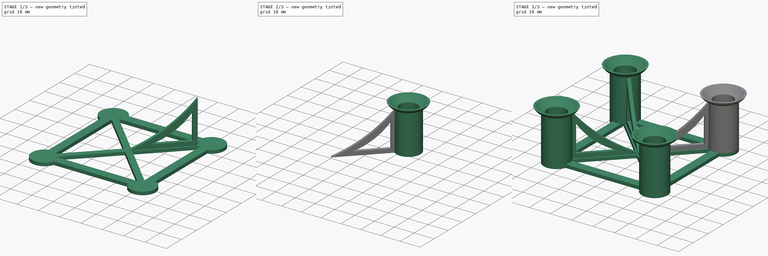
[diagram: build sequence overview — one tinted view per stage of 3, left to right]
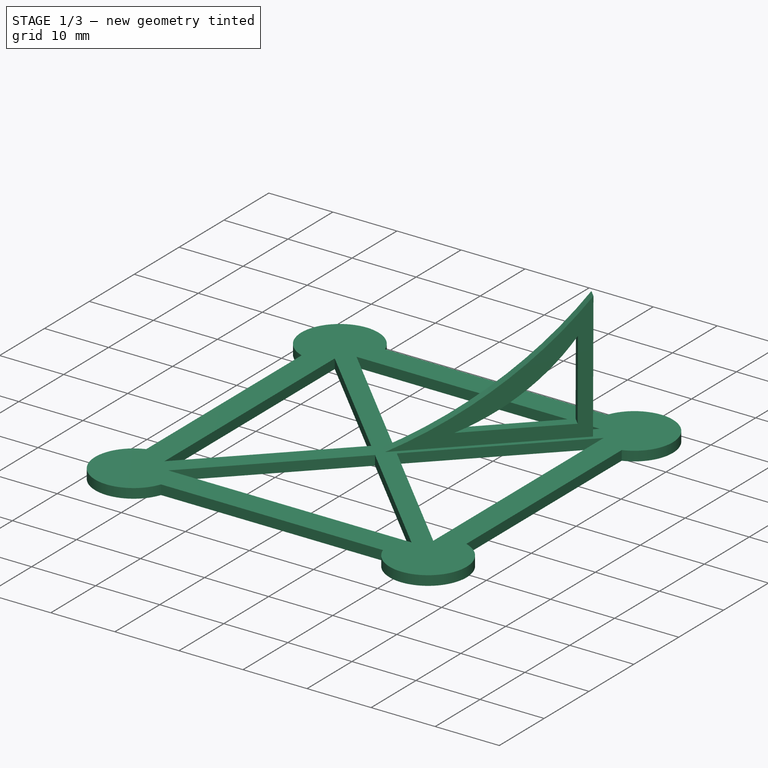
[diagram: stage 1 of 3 — iso view after this stage's code; geometry added in this stage tinted green]
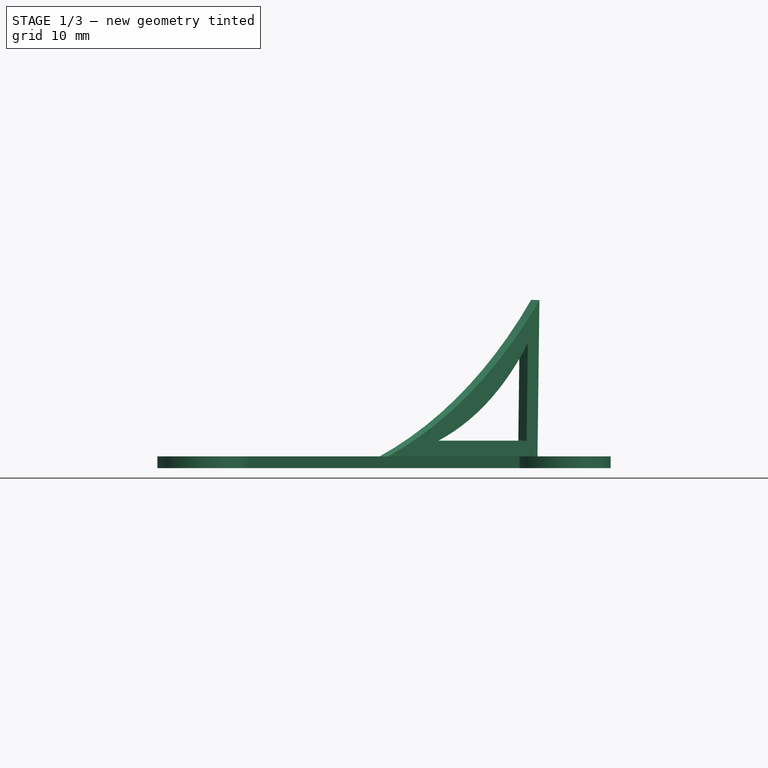
[diagram: stage 1 of 3 — front view after this stage's code; geometry added in this stage tinted green]
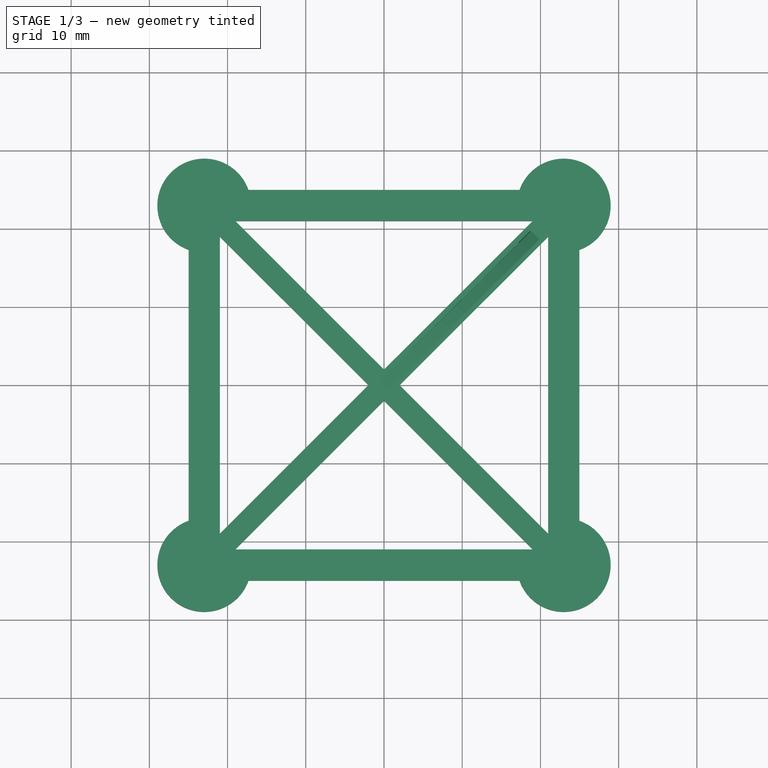
[diagram: stage 1 of 3 — top view after this stage's code; geometry added in this stage tinted green]
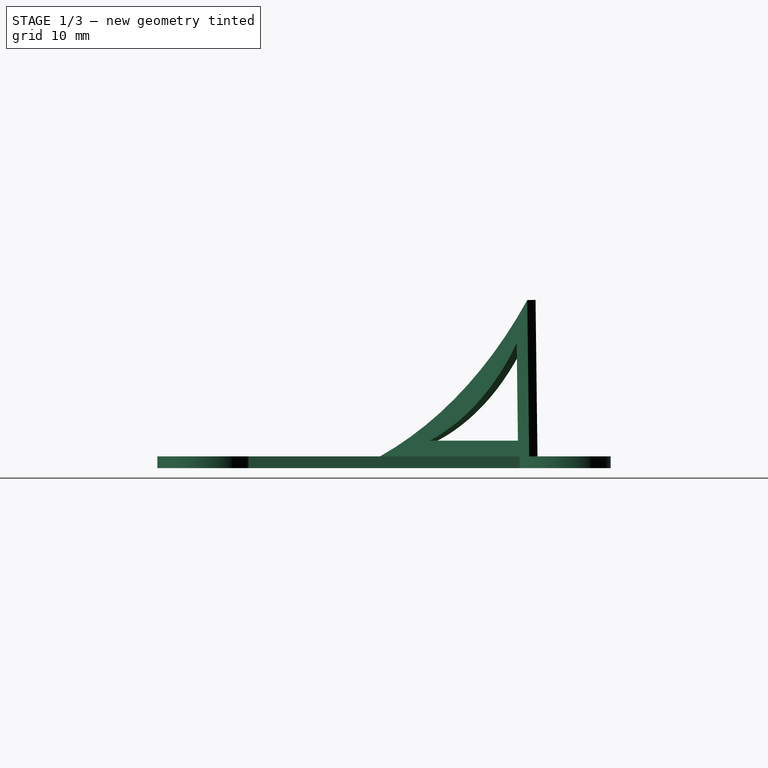
[diagram: stage 1 of 3 — right view after this stage's code; geometry added in this stage tinted green]
FCSTD DOCUMENT  (FreeCAD 0.18R16131 (Git))
Label: base_calibrado_betfpv
License: All rights reserved
LicenseURL: http://en.wikipedia.org/wiki/All_rights_reserved
objects: Sketcher::SketchObject×4, PartDesign::Pad×2, PartDesign::Body×2, PartDesign::ShapeBinder×1, PartDesign::Point×1, PartDesign::Plane×1, PartDesign::Revolution×1, Part::FeaturePython×1, Part::MultiFuse×1
note: 17 computed .brp shape members not serialized (recipe doc carries the construction recipe); baked Part::Feature solids carry a one-line shape summary decoded from their .brp

FEATURE [Sketcher::SketchObject] Sketch
  MapMode = 5
  Support = -> [XY_Plane]
  sketch-geometry (28):
    g0: LineSegment [constr] StartX=-22.981 StartY=22.981 StartZ=0 EndX=22.981 EndY=22.981 EndZ=0
    g1: LineSegment [constr] StartX=22.981 StartY=22.981 StartZ=0 EndX=22.981 EndY=-22.981 EndZ=0
    g2: LineSegment [constr] StartX=22.981 StartY=-22.981 StartZ=0 EndX=-22.981 EndY=-22.981 EndZ=0
    g3: LineSegment [constr] StartX=-22.981 StartY=-22.981 StartZ=0 EndX=-22.981 EndY=22.981 EndZ=0
    g4: LineSegment StartX=-17.3241 StartY=24.981 StartZ=0 EndX=17.3241 EndY=24.981 EndZ=0
    g5: LineSegment StartX=24.981 StartY=17.3241 StartZ=0 EndX=24.981 EndY=-17.3241 EndZ=0
    g6: LineSegment StartX=17.3241 StartY=-24.981 StartZ=0 EndX=-17.3241 EndY=-24.981 EndZ=0
    g7: LineSegment StartX=-24.981 StartY=-17.3241 StartZ=0 EndX=-24.981 EndY=17.3241 EndZ=0
    g8: LineSegment [constr] StartX=-22.981 StartY=22.981 StartZ=0 EndX=22.981 EndY=-22.981 EndZ=0
    g9: LineSegment [constr] StartX=22.981 StartY=22.981 StartZ=0 EndX=-22.981 EndY=-22.981 EndZ=0
    g10: GeomPoint X=20.981 Y=20.981 Z=0
    g11: GeomPoint X=-20.981 Y=-20.981 Z=0
    g12: LineSegment StartX=-18.981 StartY=20.981 StartZ=0 EndX=18.981 EndY=20.981 EndZ=0
    g13: LineSegment StartX=18.981 StartY=20.981 StartZ=0 EndX=0 EndY=2 EndZ=0
    g14: LineSegment StartX=0 StartY=2 StartZ=0 EndX=-18.981 EndY=20.981 EndZ=0
    g15: LineSegment StartX=-18.981 StartY=-20.981 StartZ=0 EndX=18.981 EndY=-20.981 EndZ=0
    g16: LineSegment StartX=18.981 StartY=-20.981 StartZ=0 EndX=0 EndY=-2 EndZ=0
    g17: LineSegment StartX=0 StartY=-2 StartZ=0 EndX=-18.981 EndY=-20.981 EndZ=0
    g18: LineSegment StartX=-20.981 StartY=18.981 StartZ=0 EndX=-20.981 EndY=-18.981 EndZ=0
    g19: LineSegment StartX=-20.981 StartY=-18.981 StartZ=0 EndX=-2 EndY=0 EndZ=0
    g20: LineSegment StartX=-2 StartY=0 StartZ=0 EndX=-20.981 EndY=18.981 EndZ=0
    g21: LineSegment StartX=2 StartY=0 StartZ=0 EndX=20.981 EndY=18.981 EndZ=0
    g22: LineSegment StartX=20.981 StartY=18.981 StartZ=0 EndX=20.981 EndY=-18.981 EndZ=0
    g23: LineSegment StartX=20.981 StartY=-18.981 StartZ=0 EndX=2 EndY=0 EndZ=0
    g24: ArcOfCircle CenterX=-22.981 CenterY=22.981 CenterZ=0 NormalX=0 NormalY=0 NormalZ=1 AngleXU=0 Radius=6 StartAngle=0.339837 EndAngle=4.37255
    g25: ArcOfCircle CenterX=-22.981 CenterY=-22.981 CenterZ=0 NormalX=0 NormalY=0 NormalZ=1 AngleXU=0 Radius=6 StartAngle=1.91063 EndAngle=5.94335
    g26: ArcOfCircle CenterX=22.981 CenterY=-22.981 CenterZ=0 NormalX=0 NormalY=0 NormalZ=1 AngleXU=0 Radius=6 StartAngle=3.48143 EndAngle=7.51414
    g27: ArcOfCircle CenterX=22.981 CenterY=22.981 CenterZ=0 NormalX=0 NormalY=0 NormalZ=1 AngleXU=0 Radius=6 StartAngle=5.05223 EndAngle=9.08494
  constraints (75):
    c: Coincident(g0,g1)
    c: Coincident(g2,g3)
    c: Coincident(g3,g0)
    c: Horizontal(g0)
    c: Horizontal(g2)
    c: Vertical(g1)
    c: Distance(g0,g2) = 65
    c: Equal(g0,g1)
    c: Horizontal(g4)
    c: Horizontal(g6)
    c: Vertical(g5)
    c: Vertical(g7)
    c: Equal(g4,g5)
    c: PointOnObject(g10,g9)
    c: PointOnObject(g11,g9)
    c: Coincident(g12,g13)
    c: PointOnObject(g13,g-2)
    c: Coincident(g13,g14)
    c: Coincident(g14,g12)
    c: Symmetric(g12,g12,g-2)
    c: Parallel(g13,g9)
    c: DistanceX(g12,g10) = 2
    c: Coincident(g15,g16)
    c: Coincident(g16,g17)
    c: Coincident(g17,g15)
    c: DistanceX(g11,g15) = 2
    c: Parallel(g8,g16)
    c: Symmetric(g15,g15,g-2)
    c: PointOnObject(g16,g-2)
    c: Coincident(g18,g19)
    c: PointOnObject(g19,g-1)
    c: Coincident(g19,g20)
    c: Coincident(g20,g18)
    c: Parallel(g19,g9)
    c: Symmetric(g18,g18,g-1)
    c: DistanceY(g11,g18) = 2
    c: Coincident(g22,g23)
    c: Coincident(g23,g21)
    c: Coincident(g21,g22)
    c: PointOnObject(g21,g-1)
    c: Symmetric(g21,g22,g-1)
    c: Parallel(g23,g8)
    c: DistanceY(g21,g10) = 2
    c: Coincident(g24,g4)
    c: Coincident(g24,g7)
    c: Coincident(g24,g0)
    c: Radius(g24) = 6
    c: Coincident(g9,g2)
    c: Coincident(g8,g1)
    c: Coincident(g2,g1)
    c: Coincident(g9,g0)
    c: Coincident(g8,g24)
    c: Coincident(g25,g7)
    c: Coincident(g25,g6)
    c: Coincident(g25,g2)
    c: Coincident(g26,g5)
    c: Coincident(g26,g6)
    c: Coincident(g1,g26)
    c: Coincident(g27,g4)
    c: Coincident(g27,g5)
    c: Coincident(g27,g0)
    c: Equal(g24,g27)
    c: Equal(g27,g26)
    c: Equal(g26,g25)
    c: DistanceX(g7,g24) = 2
    c: DistanceY(g24,g4) = 2
    c: Symmetric(g24,g25,g-1)
    c: PointOnObject(g-1,g9)
    c: DistanceY(g6,g25) = 2
    c: DistanceX(g25,g18) = 2
    c: DistanceX(g22,g26) = 2
    c: DistanceX(g10,g27) = 2
    c: DistanceX(g25,g11) = 2
    c: DistanceY(g26,g15) = 2
    c: DistanceY(g12,g24) = 2
FEATURE [PartDesign::Pad] Pad
  Length = 1.5
  Length2 = 100
  Profile = -> Sketch
  Type = 0
FEATURE [PartDesign::Body] Body
  Group = -> [Sketch,Pad]
  Origin = -> Origin
  Tip = -> Pad
FEATURE [Sketcher::SketchObject] Sketch001
  AttachmentOffset = pos=(0,1.5,0) rot=(0.021063,0.99974,-0.008725;0.785582rad)
  MapMode = 5
  Placement = pos=(0,3e-16,1.5) rot=(0.864753,0.358192,0.351995;1.73285rad)
  Support = -> [XZ_Plane001]
  sketch-geometry (6):
    g0: LineSegment StartX=-7.1e-15 StartY=-7.1e-15 StartZ=0 EndX=27 EndY=-7.1e-15 EndZ=0
    g1: LineSegment StartX=27 StartY=-7.1e-15 StartZ=0 EndX=27 EndY=20 EndZ=0
    g2: ArcOfCircle CenterX=-23.8205 CenterY=60.3827 CenterZ=0 NormalX=0 NormalY=0 NormalZ=1 AngleXU=0 Radius=64.9114 StartAngle=5.08814 EndAngle=5.61174
    g3: LineSegment StartX=25 StartY=14.5 StartZ=0 EndX=25 EndY=2 EndZ=0
    g4: LineSegment StartX=25 StartY=2 StartZ=0 EndX=9 EndY=2 EndZ=0
    g5: ArcOfCircle CenterX=-2.82247 CenterY=33.6228 CenterZ=0 NormalX=0 NormalY=0 NormalZ=1 AngleXU=0 Radius=33.7605 StartAngle=5.07016 EndAngle=5.68102
  constraints (19):
    c: Coincident(g0,g1)
    c: Coincident(g2,g-1)
    c: Coincident(g2,g1)
    c: Coincident(g2,g0)
    c: Vertical(g1)
    c: Horizontal(g0)
    c: DistanceY(g1,g1) = 20
    c: DistanceX(g0,g0) = 27
    c: Angle(g2) = 0.523599
    c: Vertical(g3)
    c: Coincident(g3,g4)
    c: Horizontal(g4)
    c: Coincident(g5,g4)
    c: Coincident(g5,g3)
    c: DistanceX(g3,g0) = 2
    c: DistanceY(g0,g3) = 2
    c: DistanceY(g3,g3) = 12.5
    c: DistanceX(g4,g4) = 16
    c: Angle(g5) = 0.610865
FEATURE [PartDesign::Pad] Pad001
  Length = 1.5
  Length2 = 100
  Midplane = true
  Placement = pos=(0,0,0) rot=(1,0,0;1.5708rad)
  Profile = -> Sketch001
  Type = 0
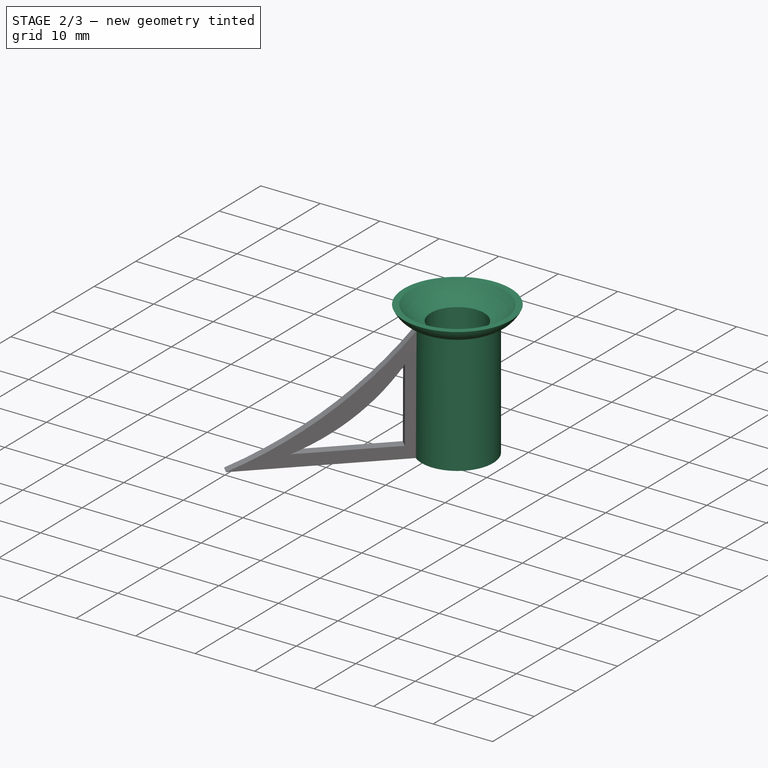
[diagram: stage 2 of 3 — iso view after this stage's code; geometry added in this stage tinted green]
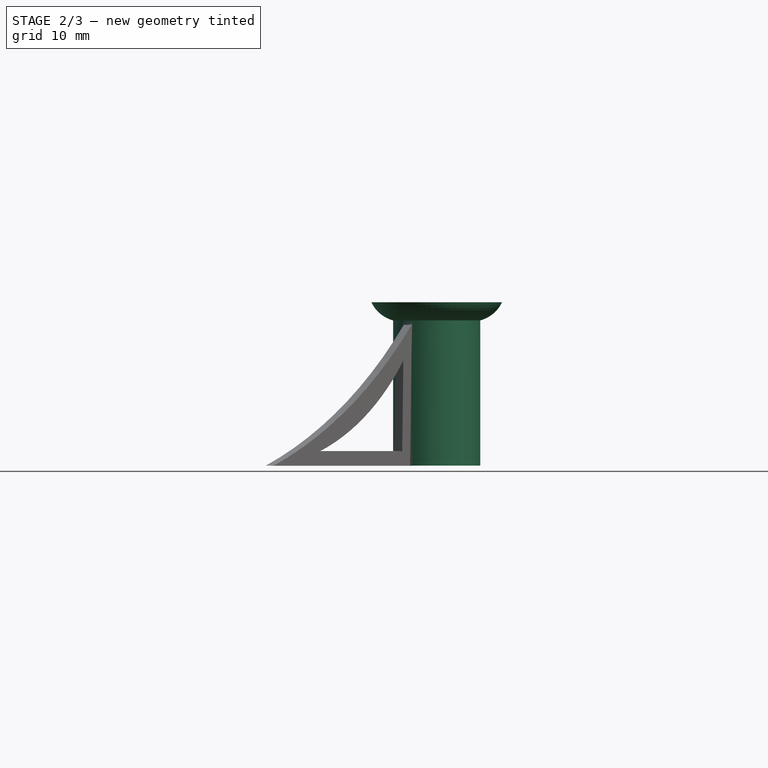
[diagram: stage 2 of 3 — front view after this stage's code; geometry added in this stage tinted green]
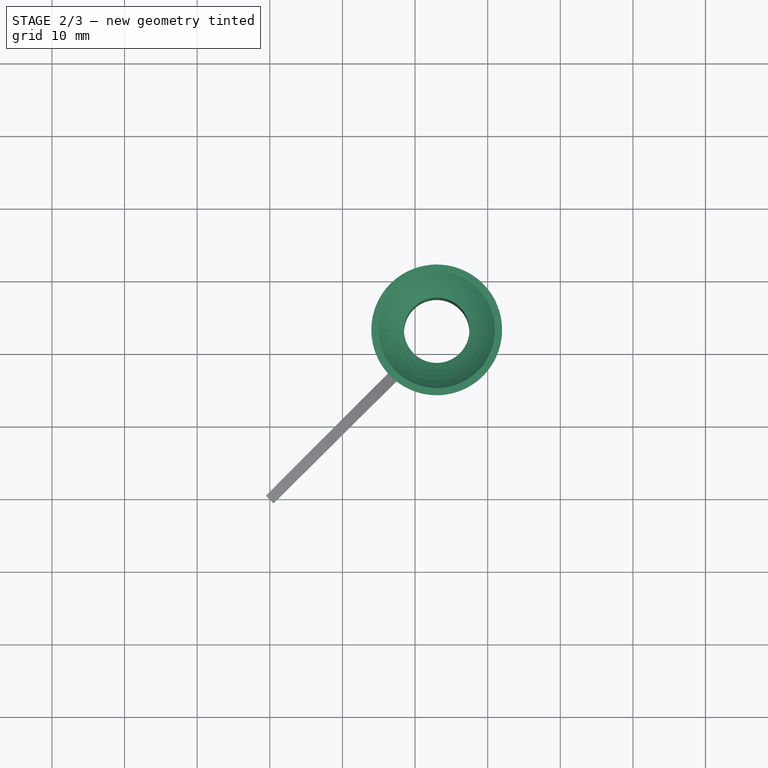
[diagram: stage 2 of 3 — top view after this stage's code; geometry added in this stage tinted green]
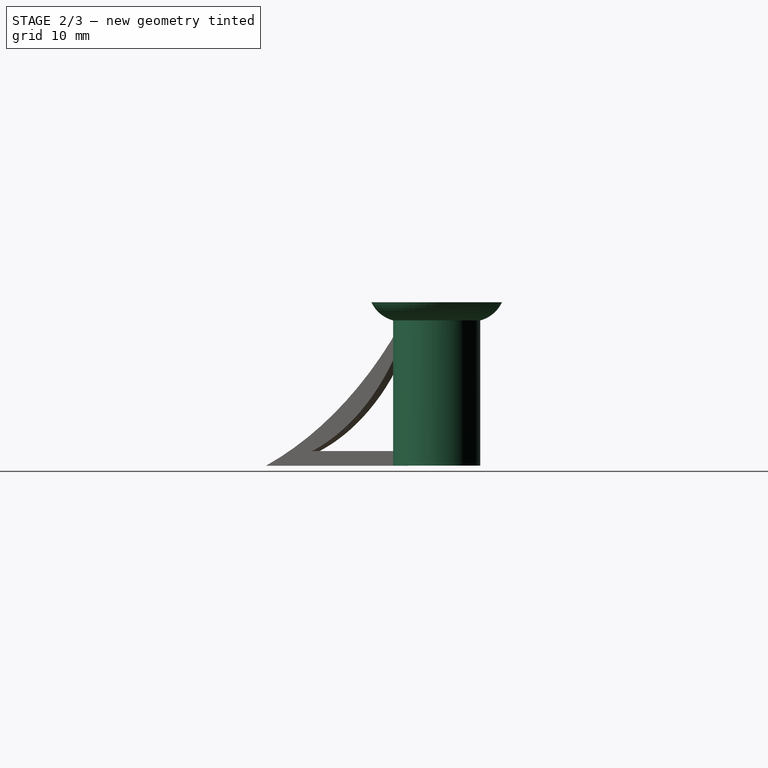
[diagram: stage 2 of 3 — right view after this stage's code; geometry added in this stage tinted green]
FEATURE [Sketcher::SketchObject] Sketch002
  MapMode = 5
  Placement = pos=(0,0,0) rot=(0.57735,0.57735,0.57735;2.0944rad)
  Support = -> [YZ_Plane001]
FEATURE [PartDesign::ShapeBinder] ReferencePad
  Placement = pos=(0,0,1.5) rot=(0,0,1;0rad)
  Support = -> [Pad]
  TraceSupport = false
FEATURE [PartDesign::Point] DatumPoint
  AttacherType = Attacher::AttachEnginePoint
  MapMode = 36
  Placement = pos=(22.981,22.981,1.5) rot=(0.707107,-0.5,-0.5;1.91063rad)
  Support = -> [ReferencePad]
FEATURE [PartDesign::Plane] DatumPlane
  Length = 42.5325
  MapMode = 4
  Placement = pos=(22.981,22.981,1.5) rot=(0.632456,-0.447214,0.632456;2.30052rad)
  ResizeMode = 0
  Support = -> [DatumPoint]
  Width = 62.0646
FEATURE [Sketcher::SketchObject] Sketch003
  MapMode = 5
  Placement = pos=(22.981,22.981,1.5) rot=(0.632456,-0.447214,0.632456;2.30052rad)
  Support = -> [DatumPlane]
  expr: Constraints[6] = 6 - 1.5
  sketch-geometry (6):
    g0: LineSegment StartX=0 StartY=-6 StartZ=0 EndX=20 EndY=-6 EndZ=0
    g1: LineSegment StartX=20 StartY=-4.5 StartZ=0 EndX=0 EndY=-4.5 EndZ=0
    g2: LineSegment StartX=0 StartY=-4.5 StartZ=0 EndX=0 EndY=-6 EndZ=0
    g3: LineSegment StartX=22.5 StartY=-8 StartZ=0 EndX=22.5 EndY=-9 EndZ=0
    g4: ArcOfCircle CenterX=24.4668 CenterY=-4.81937 CenterZ=0 NormalX=0 NormalY=0 NormalZ=1 AngleXU=0 Radius=4.62016 StartAngle=3.4 EndAngle=4.27266
    g5: ArcOfCircle CenterX=29.1437 CenterY=-0.611614 CenterZ=0 NormalX=0 NormalY=0 NormalZ=1 AngleXU=0 Radius=9.93617 StartAngle=3.54368 EndAngle=3.98001
  constraints (20):
    c: Horizontal(g0)
    c: Coincident(g1,g2)
    c: Coincident(g2,g0)
    c: Vertical(g2)
    c: Parallel(g0,g1)
    c: PointOnObject(g1,g-2)
    c: DistanceY(g1,g-1) = 4.5
    c: DistanceY(g2,g2) = 1.5
    c: DistanceX(g0,g0) = 20
    c: Vertical(g3)
    c: DistanceX(g0,g3) = 22.5
    c: DistanceY(g3,g0) = 2
    c: Coincident(g4,g0)
    c: Coincident(g4,g3)
    c: Coincident(g5,g3)
    c: Coincident(g5,g1)
    c: Angle(g5) = 0.436332
    c: Angle(g4) = 0.872665
    c: DistanceY(g3,g3) = 1
    c: Equal(g0,g1)
FEATURE [PartDesign::Revolution] Revolution
  Angle = 360
  Axis = (-1e-16,0,1)
  Base = (22.981,22.981,1.5)
  BaseFeature = -> Pad001
  Placement = pos=(0,0,0) rot=(1,0,0;1.5708rad)
  Profile = -> Sketch003
  ReferenceAxis = -> Sketch003 [H_Axis]
  Reversed = true
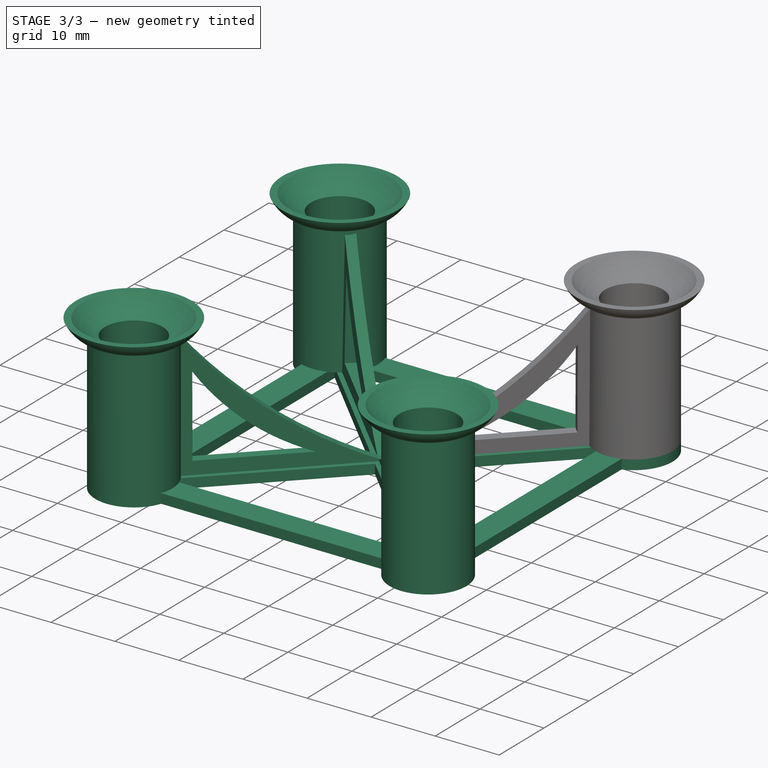
[diagram: stage 3 of 3 — iso view after this stage's code; geometry added in this stage tinted green]
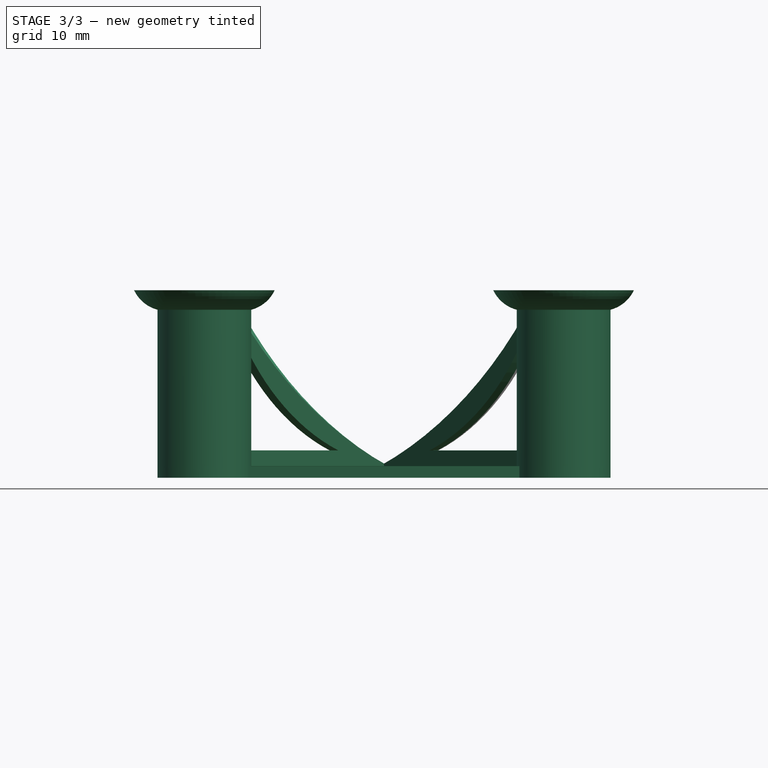
[diagram: stage 3 of 3 — front view after this stage's code; geometry added in this stage tinted green]
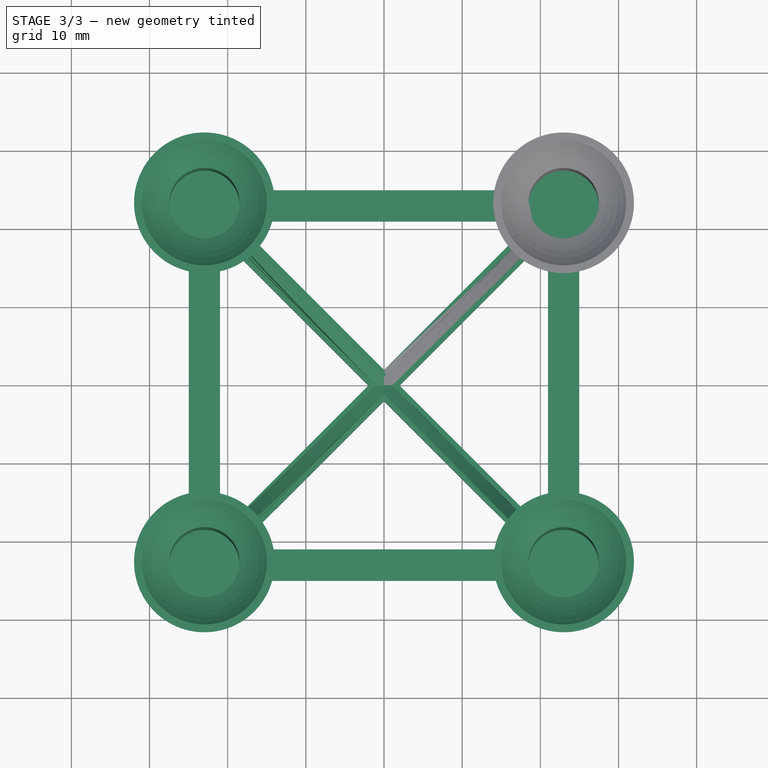
[diagram: stage 3 of 3 — top view after this stage's code; geometry added in this stage tinted green]
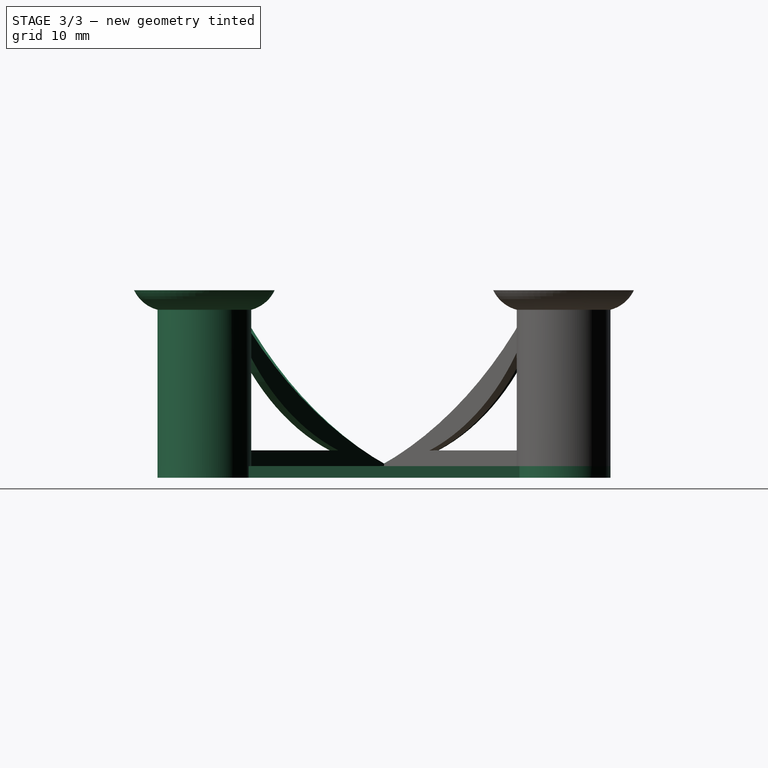
[diagram: stage 3 of 3 — right view after this stage's code; geometry added in this stage tinted green]
FEATURE [PartDesign::Body] Body001
  Group = -> [Sketch001,Pad001,Sketch002,DatumPoint,ReferencePad,DatumPlane,Sketch003,Revolution]
  Origin = -> Origin001
  Tip = -> Revolution
FEATURE [Part::FeaturePython] Array  # Draft array (typed FeaturePython)
  Angle = 360
  ArrayType = 1
  Axis = (0,0,1)
  Base = -> Revolution
  Center = (0,0,0)
  Fuse = false
  IntervalAxis = (0,0,0)
  IntervalX = (1,0,0)
  IntervalY = (0,1,0)
  IntervalZ = (0,0,1)
  NumberPolar = 4
  NumberX = 2
  NumberY = 2
  NumberZ = 1
FEATURE [Part::MultiFuse] Fusion
  Shapes = -> [Body,Array]
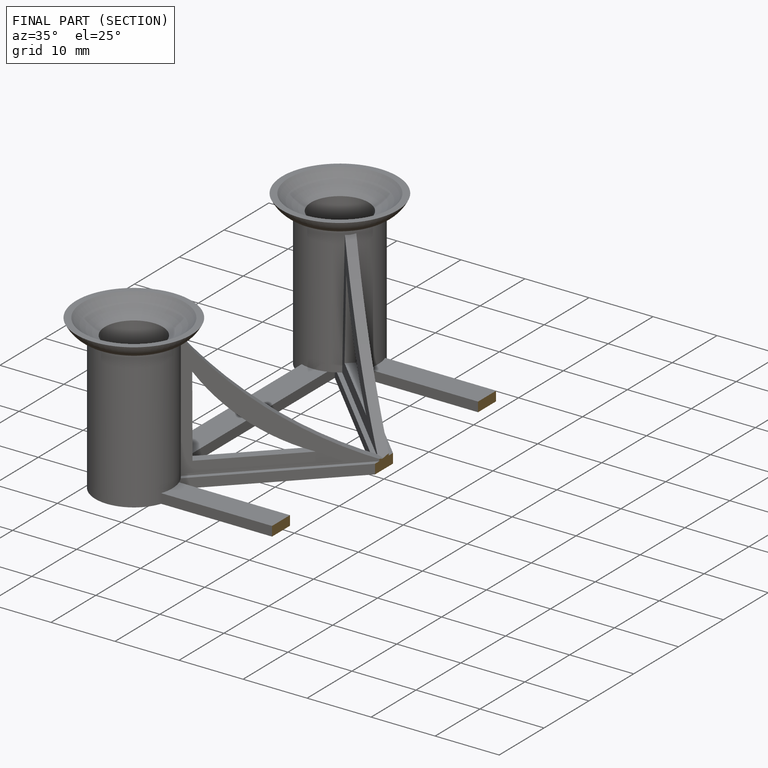
[diagram: finished part — half-section view (interior)]
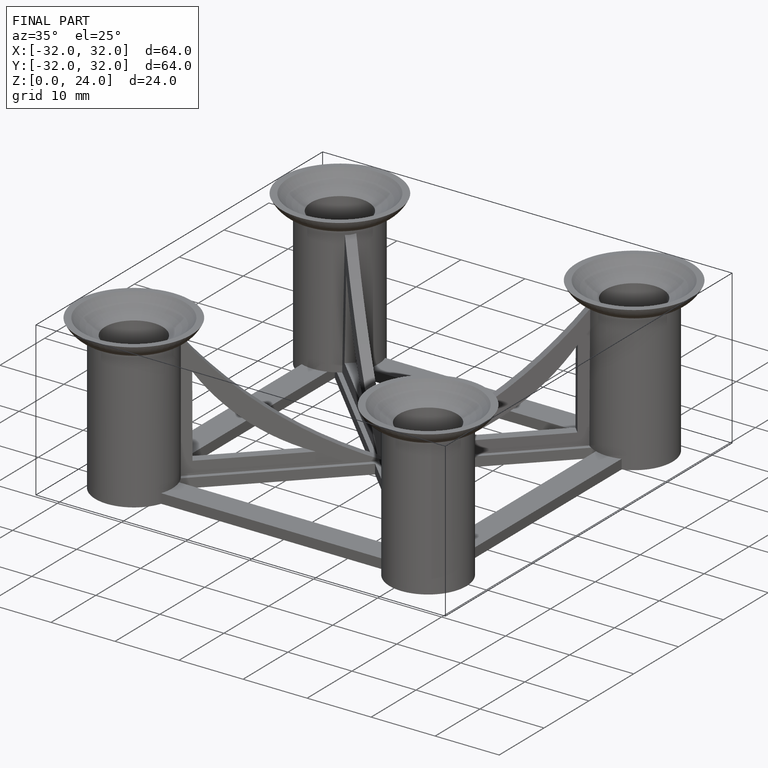
[diagram: finished part — iso view with bounding-box wireframe]
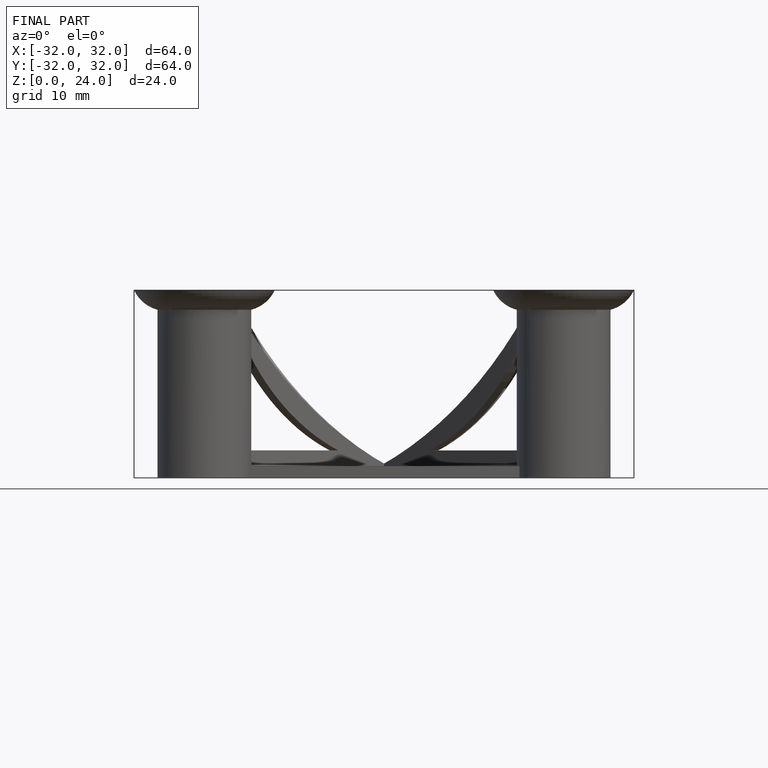
[diagram: finished part — front view with bounding-box wireframe]
